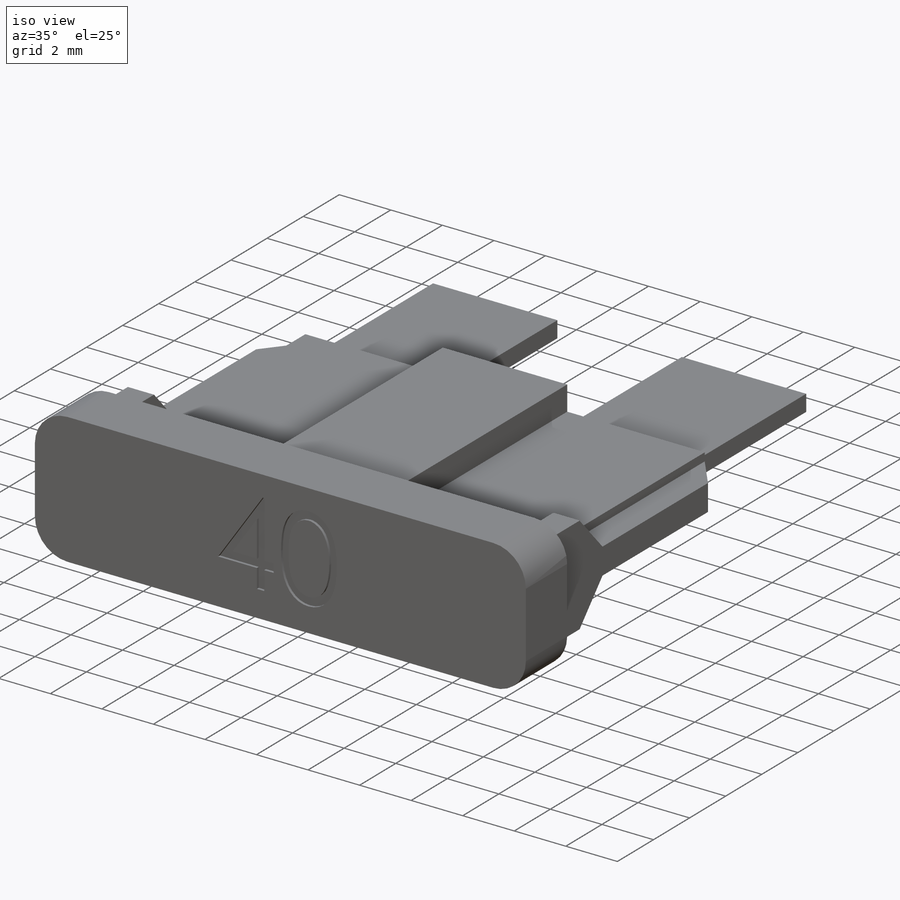
[diagram: iso view]
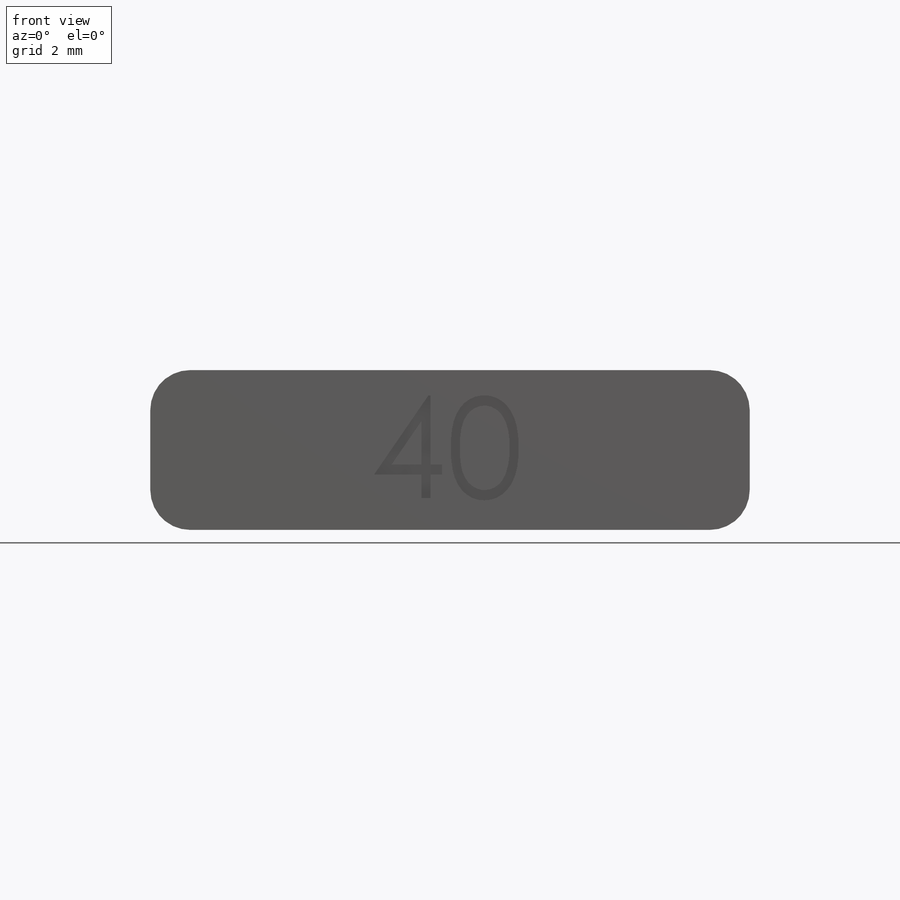
[diagram: front view]
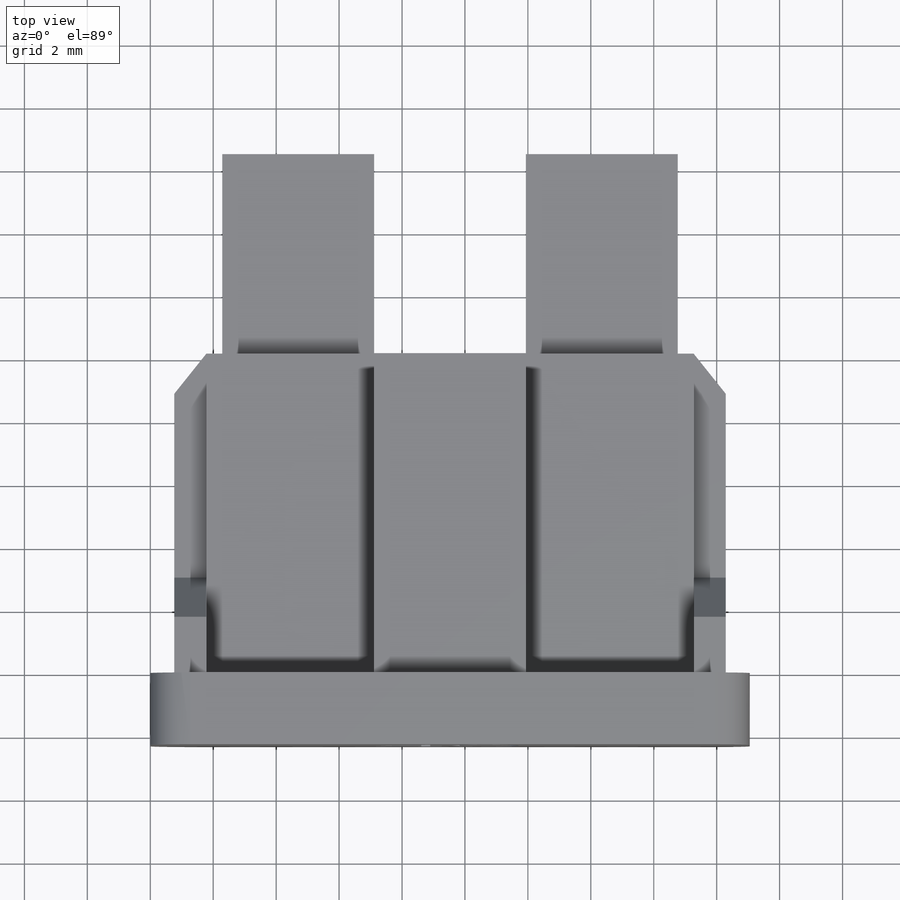
[diagram: top view]
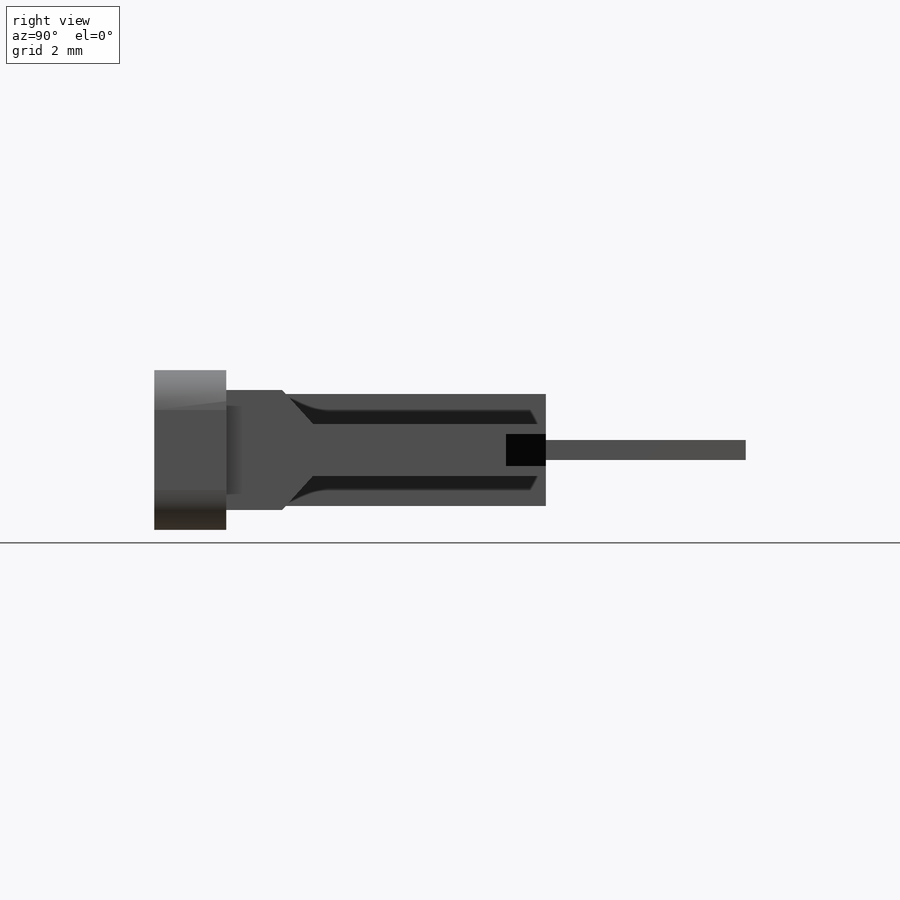
[diagram: right view]
SOLIDWORKS PART (.sldprt)
format: sldprt  version: not decoded by parser v0  size: 764,416 bytes
history: native  units: mm
features: sketch x19, cut_extrude x12, extrude x5, material x1, chamfer x1, plane x1 (+11 scaffold rows collapsed)
feature tree (50):
  scaffold x11  (default folders/planes/origin — collapsed)
  material  "Material <not specified>"
  sketch  "Sketch1"  dims[D3=1.27mm D1=5.08mm D2=19.05mm]
  extrude  "Extrude1"  Depth=2.286mm
  sketch  "Sketch2"  dims[D1=0.635mm D2=2.54mm D3=0.9525mm D5=0.762mm D6=0.762mm D7=1.778mm D8=14.478mm D9=3.81mm D10=5.334mm D11=5.334mm D12=1.778mm D4=0.508mm]
  extrude  "Extrude2"  Depth=10.16mm
  sketch  "Sketch3"  dims[c1.D1=1.016mm c1.D2=0.3175mm c1.D3=0.3175mm c1.D4=3.81mm c1.D5=1.397mm c1.D6=1.397mm c1.D7=1.778mm c1.D8=1.27mm c2.D7=1.27mm c2.D8=1.778mm]
  extrude  "Extrude3"  Depth=1.016mm
  sketch  "Sketch4"  dims[c1.D1=1.016mm c1.D2=0.3175mm c1.D3=1.397mm c1.D4=3.81mm c1.D5=1.27mm c1.D6=1.778mm c2.D5=1.27mm c2.D6=7.112mm]
  extrude  "Extrude4"  Depth=1.016mm
  chamfer  "Chamfer1"  Distance=1.016mm
  sketch  "Sketch8"  dims[c1.D6=0.635mm c1.D8=0.635mm c1.D1=6.35mm c1.D2=6.35mm c1.D3=1.524mm c1.D4=5.08mm c2.D3=1.524mm c2.D4=5.08mm c2.D5=2.54mm c2.D7=0.762mm]
  extrude  "Blade"  [1 undecoded]
  sketch  "Sketch5"  dims[D1=6.7818mm D2=0.9525mm]
  cut_extrude  ""10""  Depth=0.1016mm
  sketch  "Sketch6"  dims[D1=1.016mm D2=6.985mm]
  cut_extrude  ""40""  Depth=0.1016mm
  sketch  "Sketch7"  dims[D1=1.016mm D2=6.985mm]
  cut_extrude  ""30""  Depth=0.1016mm
  sketch  "Sketch9"  dims[D1=1.016mm D2=6.604mm]
  cut_extrude  ""7.5""  Depth=0.1016mm
  sketch  "Sketch10"  dims[D1=1.016mm D2=8.255mm]
  cut_extrude  ""1""  Depth=0.1016mm
  sketch  "Sketch11"  dims[D1=1.016mm D2=6.858mm]
  cut_extrude  ""15""  Depth=0.1016mm
  sketch  "Sketch12"  dims[D1=1.016mm D2=8.255mm]
  cut_extrude  ""2""  Depth=0.1016mm
  sketch  "Sketch13"  dims[D1=1.016mm D2=6.985mm]
  cut_extrude  ""20""  Depth=0.1016mm
  sketch  "Sketch14"  dims[D1=1.016mm D2=6.985mm]
  cut_extrude  ""25""  Depth=0.1016mm
  sketch  "Sketch15"  dims[D1=1.016mm D2=8.255mm]
  cut_extrude  ""3""  Depth=0.1016mm
  sketch  "Sketch16"  dims[D1=1.016mm D2=8.255mm]
  cut_extrude  ""4""  Depth=0.1016mm
  sketch  "Sketch17"  dims[D1=1.016mm D2=8.255mm]
  cut_extrude  ""5""  Depth=0.1016mm
  sketch  "3DSketch1"
  plane  "Plane1"
  sketch  "3DSketch2"
decode coverage: 34 of 37 modeling features carry decoded parameters
note: 1 parameter value undecoded
note: suppression state not decoded; provenance and decode notes live in map.json
